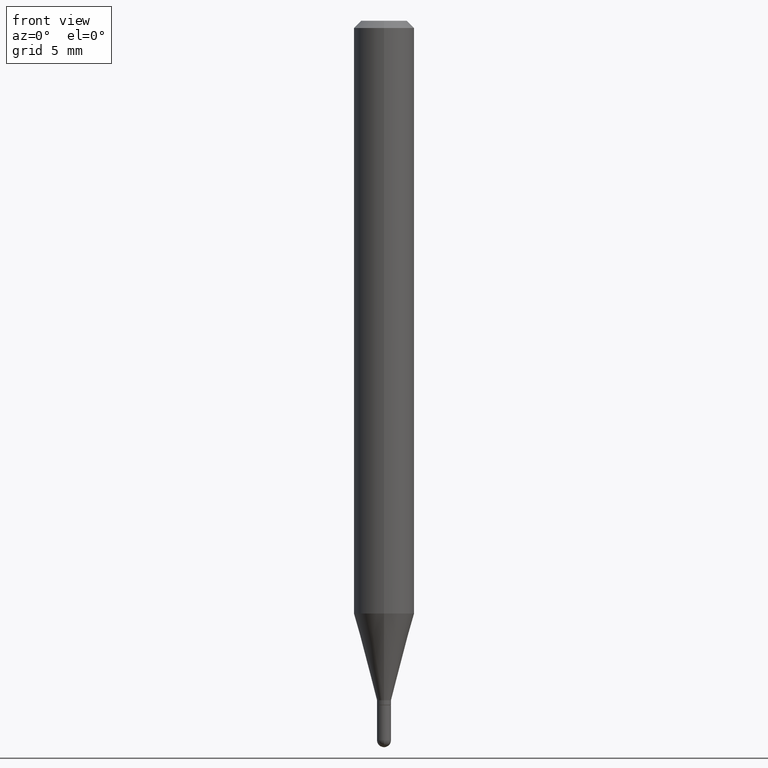
[diagram: clean part render]
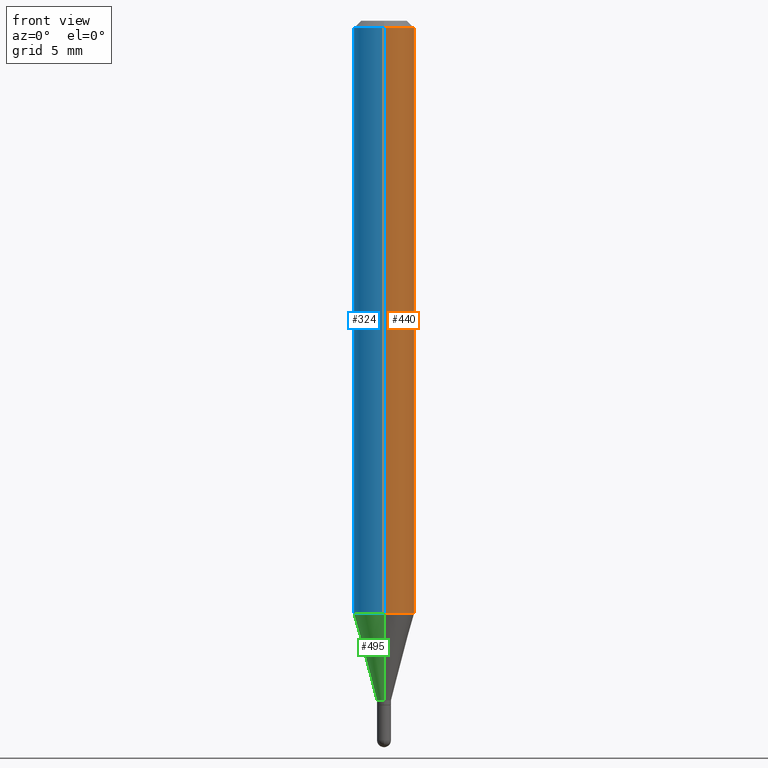
[diagram: same view with three faces highlighted in distinct colors, each labeled with its STEP entity id]
A machine part, front view with three faces highlighted in distinct colors.
Their STEP definitions:

[orange] entity #440 — the highlighted cylindrical surface (edge-blend (fillet) strip) has radius 1.5875 mm, axis along (-0, 0, 1).
#69 = AXIS2_PLACEMENT_3D ( 'NONE', #318, #280, #352 ) ;
#96 = EDGE_CURVE ( 'NONE', #148, #487, #238, .T. ) ;
#106 = CIRCLE ( 'NONE', #245, 0.06250000000000000000 ) ;
#124 = CARTESIAN_POINT ( 'NONE',  ( 4.440892098500927901E-16, 0.06249999999999995837, -0.01499999999999997863 ) ) ;
#130 = DIRECTION ( 'NONE',  ( -2.445457456841119029E-29, 3.491497591749742866E-15, 1.000000000000000000 ) ) ;
#135 = VECTOR ( 'NONE', #207, 39.37007874015748143 ) ;
#140 = CARTESIAN_POINT ( 'NONE',  ( 3.668186185261620372E-31, -5.237246387624531296E-17, -0.01499999999999976179 ) ) ;
#141 = VERTEX_POINT ( 'NONE', #163 ) ;
#147 = CYLINDRICAL_SURFACE ( 'NONE', #297, 0.06250000000000000000 ) ;
#148 = VERTEX_POINT ( 'NONE', #400 ) ;
#149 = FACE_OUTER_BOUND ( 'NONE', #382, .T. ) ;
#163 = CARTESIAN_POINT ( 'NONE',  ( -4.364351673553912750E-16, -0.06250000000000005551, -0.01499999999999954321 ) ) ;
#175 = CARTESIAN_POINT ( 'NONE',  ( 4.440892098500625669E-16, 0.06250000000000000000, -2.182185994843589538E-16 ) ) ;
#207 = DIRECTION ( 'NONE',  ( -2.445457456841119029E-29, 3.491497591749742866E-15, 1.000000000000000000 ) ) ;
#217 = DIRECTION ( 'NONE',  ( -2.445457456841119029E-29, 3.491497591749743261E-15, 1.000000000000000000 ) ) ;
#231 = CARTESIAN_POINT ( 'NONE',  ( 0.000000000000000000, 0.000000000000000000, 0.000000000000000000 ) ) ;
#238 = CIRCLE ( 'NONE', #69, 0.06250000000000000000 ) ;
#240 = EDGE_CURVE ( 'NONE', #148, #141, #411, .T. ) ;
#245 = AXIS2_PLACEMENT_3D ( 'NONE', #140, #217, #452 ) ;
#248 = ORIENTED_EDGE ( 'NONE', *, *, #96, .T. ) ;
#278 = EDGE_CURVE ( 'NONE', #487, #340, #477, .T. ) ;
#280 = DIRECTION ( 'NONE',  ( -2.445457456841119029E-29, 3.491497591749743261E-15, 1.000000000000000000 ) ) ;
#297 = AXIS2_PLACEMENT_3D ( 'NONE', #231, #499, #492 ) ;
#318 = CARTESIAN_POINT ( 'NONE',  ( 2.992901381067487827E-29, -4.273109693692998475E-15, -1.223861561236694095 ) ) ;
#322 = CARTESIAN_POINT ( 'NONE',  ( -4.364351673553916201E-16, -0.06250000000000000000, 2.182185994843589538E-16 ) ) ;
#340 = VERTEX_POINT ( 'NONE', #124 ) ;
#352 = DIRECTION ( 'NONE',  ( -6.982962677686265922E-15, -1.000000000000000000, 4.370956789862821150E-15 ) ) ;
#369 = ORIENTED_EDGE ( 'NONE', *, *, #278, .T. ) ;
#382 = EDGE_LOOP ( 'NONE', ( #248, #369, #485, #504 ) ) ;
#400 = CARTESIAN_POINT ( 'NONE',  ( -4.364351673553617913E-16, -0.06250000000000427436, -1.223861561236693873 ) ) ;
#411 = LINE ( 'NONE', #322, #135 ) ;
#440 = ADVANCED_FACE ( 'NONE', ( #149 ), #147, .T. ) ;
#452 = DIRECTION ( 'NONE',  ( -6.982962677686265922E-15, -1.000000000000000000, 3.483106191921935554E-15 ) ) ;
#462 = CARTESIAN_POINT ( 'NONE',  ( 4.440892098500922971E-16, 0.06249999999999571176, -1.223861561236694540 ) ) ;
#477 = LINE ( 'NONE', #175, #480 ) ;
#480 = VECTOR ( 'NONE', #130, 39.37007874015748143 ) ;
#485 = ORIENTED_EDGE ( 'NONE', *, *, #510, .F. ) ;
#487 = VERTEX_POINT ( 'NONE', #462 ) ;
#492 = DIRECTION ( 'NONE',  ( -6.982962677686265922E-15, -1.000000000000000000, 3.491497591749743261E-15 ) ) ;
#499 = DIRECTION ( 'NONE',  ( -2.445457456841119029E-29, 3.491497591749743261E-15, 1.000000000000000000 ) ) ;
#504 = ORIENTED_EDGE ( 'NONE', *, *, #240, .F. ) ;
#510 = EDGE_CURVE ( 'NONE', #141, #340, #106, .T. ) ;

[blue] entity #324 — the highlighted cylindrical surface (edge-blend (fillet) strip) has radius 1.5875 mm, axis along (-0, 0, 1).
#46 = DIRECTION ( 'NONE',  ( -6.982962677686265922E-15, -1.000000000000000000, 4.370956789862821150E-15 ) ) ;
#57 = DIRECTION ( 'NONE',  ( -2.445457456841119029E-29, 3.491497591749743261E-15, 1.000000000000000000 ) ) ;
#93 = EDGE_CURVE ( 'NONE', #487, #148, #270, .T. ) ;
#94 = DIRECTION ( 'NONE',  ( -6.982962677686265922E-15, -1.000000000000000000, 3.483106191921935554E-15 ) ) ;
#97 = FACE_OUTER_BOUND ( 'NONE', #500, .T. ) ;
#124 = CARTESIAN_POINT ( 'NONE',  ( 4.440892098500927901E-16, 0.06249999999999995837, -0.01499999999999997863 ) ) ;
#128 = CARTESIAN_POINT ( 'NONE',  ( 3.668186185261620372E-31, -5.237246387624531296E-17, -0.01499999999999976179 ) ) ;
#130 = DIRECTION ( 'NONE',  ( -2.445457456841119029E-29, 3.491497591749742866E-15, 1.000000000000000000 ) ) ;
#135 = VECTOR ( 'NONE', #207, 39.37007874015748143 ) ;
#141 = VERTEX_POINT ( 'NONE', #163 ) ;
#148 = VERTEX_POINT ( 'NONE', #400 ) ;
#163 = CARTESIAN_POINT ( 'NONE',  ( -4.364351673553912750E-16, -0.06250000000000005551, -0.01499999999999954321 ) ) ;
#175 = CARTESIAN_POINT ( 'NONE',  ( 4.440892098500625669E-16, 0.06250000000000000000, -2.182185994843589538E-16 ) ) ;
#207 = DIRECTION ( 'NONE',  ( -2.445457456841119029E-29, 3.491497591749742866E-15, 1.000000000000000000 ) ) ;
#213 = DIRECTION ( 'NONE',  ( -6.982962677686265922E-15, -1.000000000000000000, 3.491497591749743261E-15 ) ) ;
#223 = ORIENTED_EDGE ( 'NONE', *, *, #398, .F. ) ;
#232 = ORIENTED_EDGE ( 'NONE', *, *, #93, .T. ) ;
#237 = DIRECTION ( 'NONE',  ( -2.445457456841119029E-29, 3.491497591749743261E-15, 1.000000000000000000 ) ) ;
#240 = EDGE_CURVE ( 'NONE', #148, #141, #411, .T. ) ;
#250 = ORIENTED_EDGE ( 'NONE', *, *, #240, .T. ) ;
#253 = CYLINDRICAL_SURFACE ( 'NONE', #505, 0.06250000000000000000 ) ;
#270 = CIRCLE ( 'NONE', #393, 0.06250000000000000000 ) ;
#278 = EDGE_CURVE ( 'NONE', #487, #340, #477, .T. ) ;
#288 = CIRCLE ( 'NONE', #339, 0.06250000000000000000 ) ;
#289 = CARTESIAN_POINT ( 'NONE',  ( 0.000000000000000000, 0.000000000000000000, 0.000000000000000000 ) ) ;
#322 = CARTESIAN_POINT ( 'NONE',  ( -4.364351673553916201E-16, -0.06250000000000000000, 2.182185994843589538E-16 ) ) ;
#324 = ADVANCED_FACE ( 'NONE', ( #97 ), #253, .T. ) ;
#326 = ORIENTED_EDGE ( 'NONE', *, *, #278, .F. ) ;
#339 = AXIS2_PLACEMENT_3D ( 'NONE', #128, #444, #94 ) ;
#340 = VERTEX_POINT ( 'NONE', #124 ) ;
#393 = AXIS2_PLACEMENT_3D ( 'NONE', #469, #237, #46 ) ;
#398 = EDGE_CURVE ( 'NONE', #340, #141, #288, .T. ) ;
#400 = CARTESIAN_POINT ( 'NONE',  ( -4.364351673553617913E-16, -0.06250000000000427436, -1.223861561236693873 ) ) ;
#411 = LINE ( 'NONE', #322, #135 ) ;
#444 = DIRECTION ( 'NONE',  ( -2.445457456841119029E-29, 3.491497591749743261E-15, 1.000000000000000000 ) ) ;
#462 = CARTESIAN_POINT ( 'NONE',  ( 4.440892098500922971E-16, 0.06249999999999571176, -1.223861561236694540 ) ) ;
#469 = CARTESIAN_POINT ( 'NONE',  ( 2.992901381067487827E-29, -4.273109693692998475E-15, -1.223861561236694095 ) ) ;
#477 = LINE ( 'NONE', #175, #480 ) ;
#480 = VECTOR ( 'NONE', #130, 39.37007874015748143 ) ;
#487 = VERTEX_POINT ( 'NONE', #462 ) ;
#500 = EDGE_LOOP ( 'NONE', ( #326, #232, #250, #223 ) ) ;
#505 = AXIS2_PLACEMENT_3D ( 'NONE', #289, #57, #213 ) ;

[green] entity #495 — the highlighted conical surface has half-angle 15 deg.
#8 = ORIENTED_EDGE ( 'NONE', *, *, #93, .F. ) ;
#24 = LINE ( 'NONE', #180, #61 ) ;
#31 = CARTESIAN_POINT ( 'NONE',  ( -1.012529588264160223E-16, -0.01450000000000482153, -1.402999999999999803 ) ) ;
#39 = DIRECTION ( 'NONE',  ( -2.445457456841119029E-29, 3.491497591749743261E-15, 1.000000000000000000 ) ) ;
#46 = DIRECTION ( 'NONE',  ( -6.982962677686265922E-15, -1.000000000000000000, 4.370956789862821150E-15 ) ) ;
#61 = VECTOR ( 'NONE', #454, 39.37007874015748854 ) ;
#93 = EDGE_CURVE ( 'NONE', #487, #148, #270, .T. ) ;
#102 = DIRECTION ( 'NONE',  ( -6.982962677686265922E-15, -1.000000000000000000, 0.000000000000000000 ) ) ;
#110 = DIRECTION ( 'NONE',  ( -2.445457456841119029E-29, 3.491497591749743261E-15, 1.000000000000000000 ) ) ;
#114 = CARTESIAN_POINT ( 'NONE',  ( 2.735589532676705169E-16, 0.01449999999999502555, -1.402999999999999803 ) ) ;
#125 = AXIS2_PLACEMENT_3D ( 'NONE', #164, #39, #317 ) ;
#148 = VERTEX_POINT ( 'NONE', #400 ) ;
#164 = CARTESIAN_POINT ( 'NONE',  ( 3.430976811948089539E-29, -4.898571121224889607E-15, -1.402999999999999803 ) ) ;
#173 = EDGE_LOOP ( 'NONE', ( #399, #482, #412, #8 ) ) ;
#180 = CARTESIAN_POINT ( 'NONE',  ( 1.030286966852482683E-16, 0.01449999999999502555, -1.402999999999999803 ) ) ;
#183 = EDGE_CURVE ( 'NONE', #214, #336, #348, .T. ) ;
#214 = VERTEX_POINT ( 'NONE', #114 ) ;
#215 = CARTESIAN_POINT ( 'NONE',  ( -1.012529588264160223E-16, -0.01450000000000482153, -1.402999999999999803 ) ) ;
#237 = DIRECTION ( 'NONE',  ( -2.445457456841119029E-29, 3.491497591749743261E-15, 1.000000000000000000 ) ) ;
#239 = VECTOR ( 'NONE', #268, 39.37007874015748854 ) ;
#252 = AXIS2_PLACEMENT_3D ( 'NONE', #335, #110, #102 ) ;
#266 = LINE ( 'NONE', #31, #239 ) ;
#268 = DIRECTION ( 'NONE',  ( -1.807323732225331717E-15, -0.2588190451025184080, 0.9659258262890689783 ) ) ;
#270 = CIRCLE ( 'NONE', #393, 0.06250000000000000000 ) ;
#317 = DIRECTION ( 'NONE',  ( -6.982962677686265922E-15, -1.000000000000000000, 0.000000000000000000 ) ) ;
#321 = CONICAL_SURFACE ( 'NONE', #252, 0.01449999999999992441, 0.2617993877991505181 ) ;
#335 = CARTESIAN_POINT ( 'NONE',  ( 3.430976811948089539E-29, -4.898571121224889607E-15, -1.402999999999999803 ) ) ;
#336 = VERTEX_POINT ( 'NONE', #215 ) ;
#348 = CIRCLE ( 'NONE', #125, 0.01449999999999992441 ) ;
#377 = FACE_OUTER_BOUND ( 'NONE', #173, .T. ) ;
#393 = AXIS2_PLACEMENT_3D ( 'NONE', #469, #237, #46 ) ;
#399 = ORIENTED_EDGE ( 'NONE', *, *, #439, .F. ) ;
#400 = CARTESIAN_POINT ( 'NONE',  ( -4.364351673553617913E-16, -0.06250000000000427436, -1.223861561236693873 ) ) ;
#412 = ORIENTED_EDGE ( 'NONE', *, *, #471, .T. ) ;
#439 = EDGE_CURVE ( 'NONE', #214, #487, #24, .T. ) ;
#454 = DIRECTION ( 'NONE',  ( 1.839019923739601893E-15, 0.2588190451025252359, 0.9659258262890670910 ) ) ;
#462 = CARTESIAN_POINT ( 'NONE',  ( 4.440892098500922971E-16, 0.06249999999999571176, -1.223861561236694540 ) ) ;
#469 = CARTESIAN_POINT ( 'NONE',  ( 2.992901381067487827E-29, -4.273109693692998475E-15, -1.223861561236694095 ) ) ;
#471 = EDGE_CURVE ( 'NONE', #336, #148, #266, .T. ) ;
#482 = ORIENTED_EDGE ( 'NONE', *, *, #183, .T. ) ;
#487 = VERTEX_POINT ( 'NONE', #462 ) ;
#495 = ADVANCED_FACE ( 'NONE', ( #377 ), #321, .T. ) ;